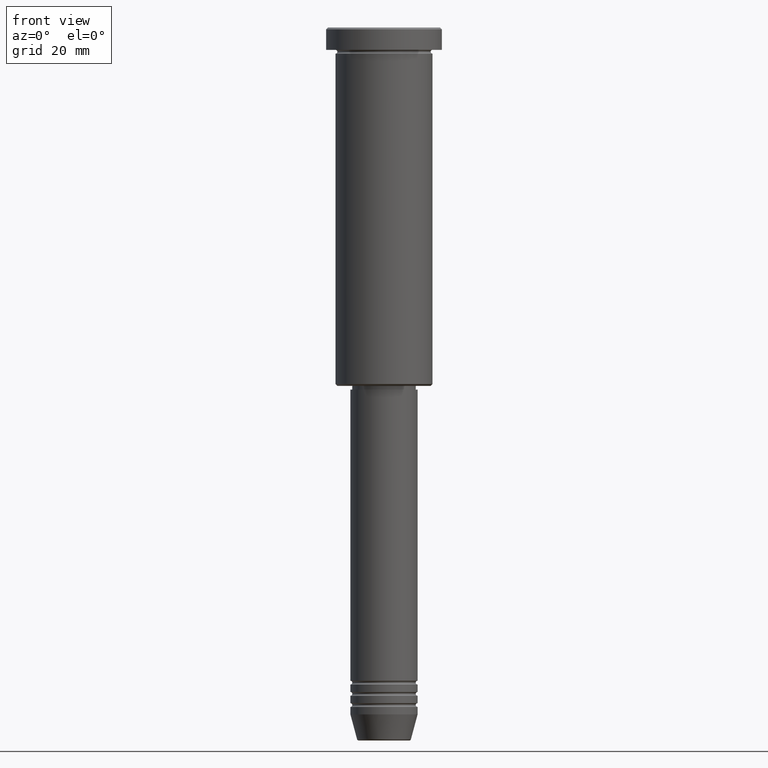
[diagram: clean part render]
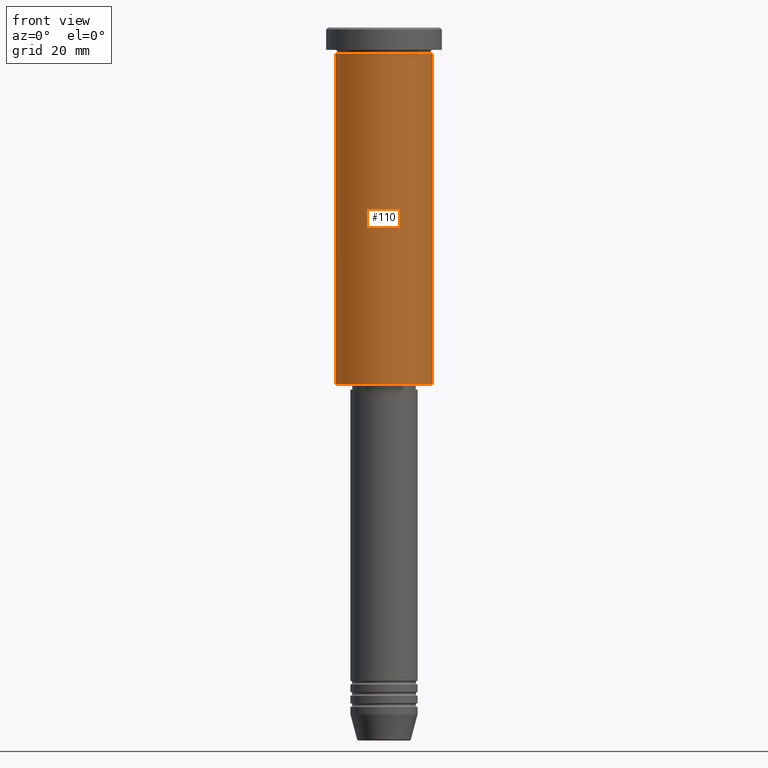
[diagram: same view with one face highlighted and labeled with its STEP entity id]
A machine part, front view. The second image highlights one B-rep face of the part: STEP entity #110.
In plain terms, the highlighted cylindrical surface (partial cylindrical patch) has radius 13 mm, axis along (-0, -0, 1).
Its self-contained STEP definition (entity closure, byte-faithful):
#92 = AXIS2_PLACEMENT_3D ( 'NONE', #194, #840, #564 ) ;
#93 = DIRECTION ( 'NONE',  ( 1.000000000000000000, 0.000000000000000000, 0.000000000000000000 ) ) ;
#110 = ADVANCED_FACE ( 'NONE', ( #1018 ), #584, .T. ) ;
#173 = EDGE_CURVE ( 'NONE', #1096, #366, #616, .T. ) ;
#186 = EDGE_CURVE ( 'NONE', #1096, #570, #919, .T. ) ;
#194 = CARTESIAN_POINT ( 'NONE',  ( 0.000000000000000000, 0.000000000000000000, -95.50000000000007105 ) ) ;
#210 = EDGE_CURVE ( 'NONE', #366, #829, #868, .T. ) ;
#214 = DIRECTION ( 'NONE',  ( 1.000000000000000000, 0.000000000000000000, 0.000000000000000000 ) ) ;
#326 = CARTESIAN_POINT ( 'NONE',  ( 13.00000000000000000, 0.000000000000000000, -6.999999999999995559 ) ) ;
#345 = DIRECTION ( 'NONE',  ( -0.000000000000000000, -0.000000000000000000, 1.000000000000000000 ) ) ;
#347 = ORIENTED_EDGE ( 'NONE', *, *, #1090, .F. ) ;
#364 = CARTESIAN_POINT ( 'NONE',  ( 0.000000000000000000, 0.000000000000000000, -6.999999999999995559 ) ) ;
#366 = VERTEX_POINT ( 'NONE', #637 ) ;
#380 = DIRECTION ( 'NONE',  ( -0.000000000000000000, -0.000000000000000000, 1.000000000000000000 ) ) ;
#400 = CARTESIAN_POINT ( 'NONE',  ( 0.000000000000000000, 0.000000000000000000, 0.000000000000000000 ) ) ;
#411 = DIRECTION ( 'NONE',  ( -0.000000000000000000, -0.000000000000000000, 1.000000000000000000 ) ) ;
#522 = ORIENTED_EDGE ( 'NONE', *, *, #186, .F. ) ;
#553 = CARTESIAN_POINT ( 'NONE',  ( -13.00000000000000000, 1.592040838891559095E-15, -95.50000000000007105 ) ) ;
#564 = DIRECTION ( 'NONE',  ( -1.000000000000000000, 0.000000000000000000, 0.000000000000000000 ) ) ;
#570 = VERTEX_POINT ( 'NONE', #748 ) ;
#584 = CYLINDRICAL_SURFACE ( 'NONE', #833, 13.00000000000000000 ) ;
#602 = CARTESIAN_POINT ( 'NONE',  ( 13.00000000000000000, 0.000000000000000000, 0.000000000000000000 ) ) ;
#616 = CIRCLE ( 'NONE', #92, 13.00000000000000000 ) ;
#637 = CARTESIAN_POINT ( 'NONE',  ( 13.00000000000000000, 0.000000000000000000, -95.50000000000007105 ) ) ;
#653 = VECTOR ( 'NONE', #962, 1000.000000000000000 ) ;
#748 = CARTESIAN_POINT ( 'NONE',  ( -13.00000000000000000, 1.592040838891559095E-15, -6.999999999999995559 ) ) ;
#784 = ORIENTED_EDGE ( 'NONE', *, *, #210, .T. ) ;
#792 = AXIS2_PLACEMENT_3D ( 'NONE', #364, #345, #93 ) ;
#829 = VERTEX_POINT ( 'NONE', #326 ) ;
#831 = CARTESIAN_POINT ( 'NONE',  ( -13.00000000000000000, 1.592040838891559095E-15, 0.000000000000000000 ) ) ;
#833 = AXIS2_PLACEMENT_3D ( 'NONE', #400, #380, #214 ) ;
#840 = DIRECTION ( 'NONE',  ( -0.000000000000000000, -0.000000000000000000, 1.000000000000000000 ) ) ;
#868 = LINE ( 'NONE', #602, #1097 ) ;
#919 = LINE ( 'NONE', #831, #653 ) ;
#962 = DIRECTION ( 'NONE',  ( -0.000000000000000000, -0.000000000000000000, 1.000000000000000000 ) ) ;
#990 = CIRCLE ( 'NONE', #792, 13.00000000000000000 ) ;
#994 = ORIENTED_EDGE ( 'NONE', *, *, #173, .T. ) ;
#1018 = FACE_OUTER_BOUND ( 'NONE', #1029, .T. ) ;
#1029 = EDGE_LOOP ( 'NONE', ( #522, #994, #784, #347 ) ) ;
#1090 = EDGE_CURVE ( 'NONE', #570, #829, #990, .T. ) ;
#1096 = VERTEX_POINT ( 'NONE', #553 ) ;
#1097 = VECTOR ( 'NONE', #411, 1000.000000000000000 ) ;